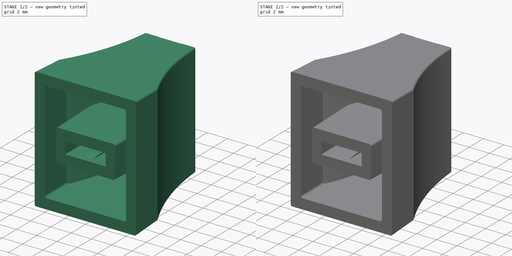
[diagram: build sequence overview — one tinted view per stage of 2, left to right]
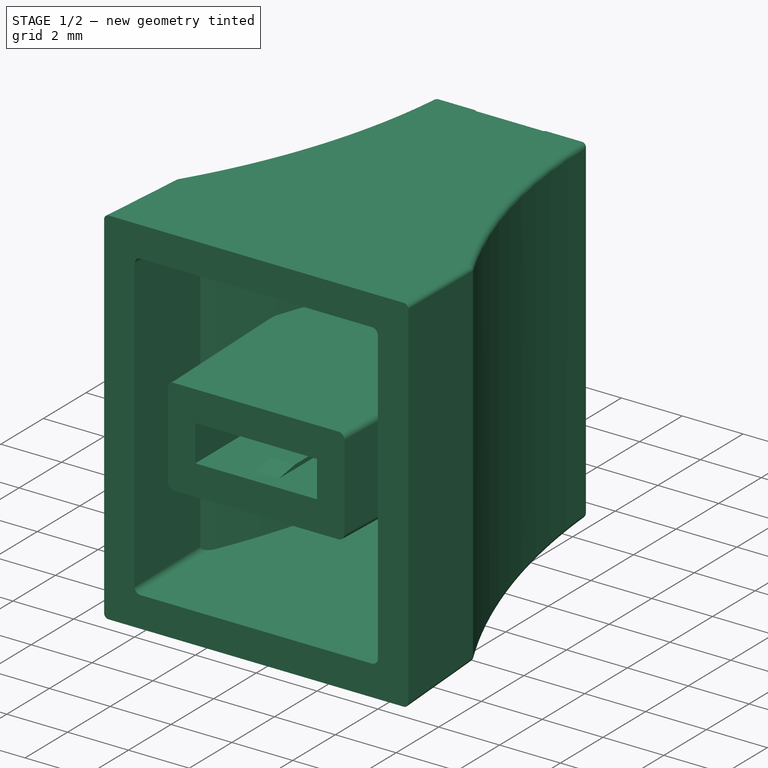
[diagram: stage 1 of 2 — iso view after this stage's code; geometry added in this stage tinted green]
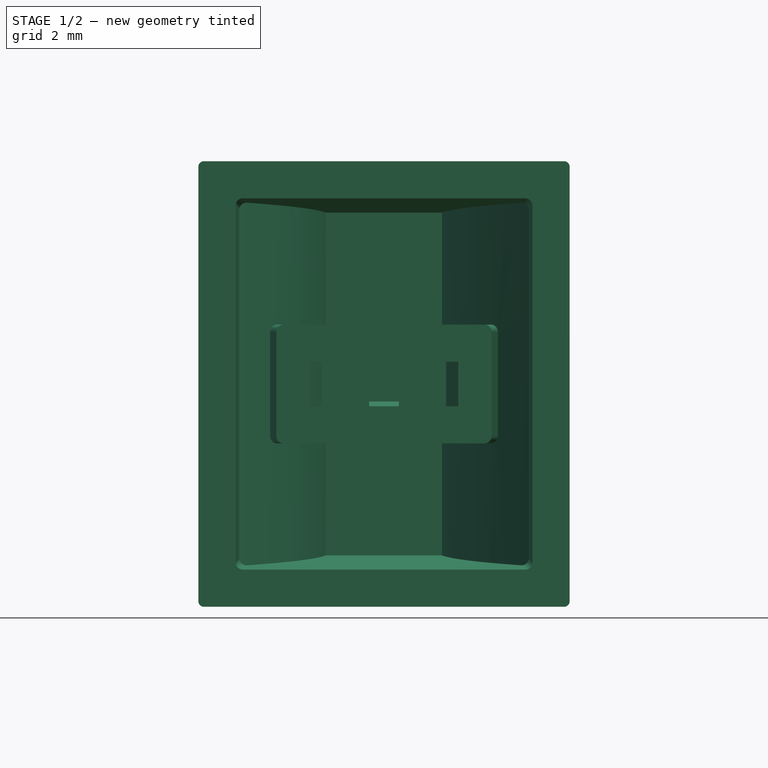
[diagram: stage 1 of 2 — front view after this stage's code; geometry added in this stage tinted green]
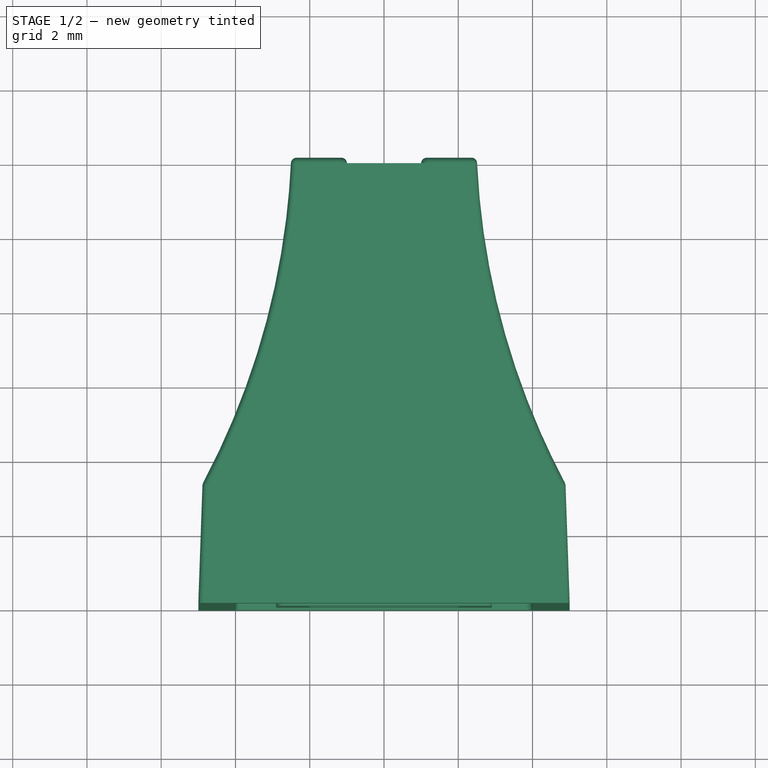
[diagram: stage 1 of 2 — top view after this stage's code; geometry added in this stage tinted green]
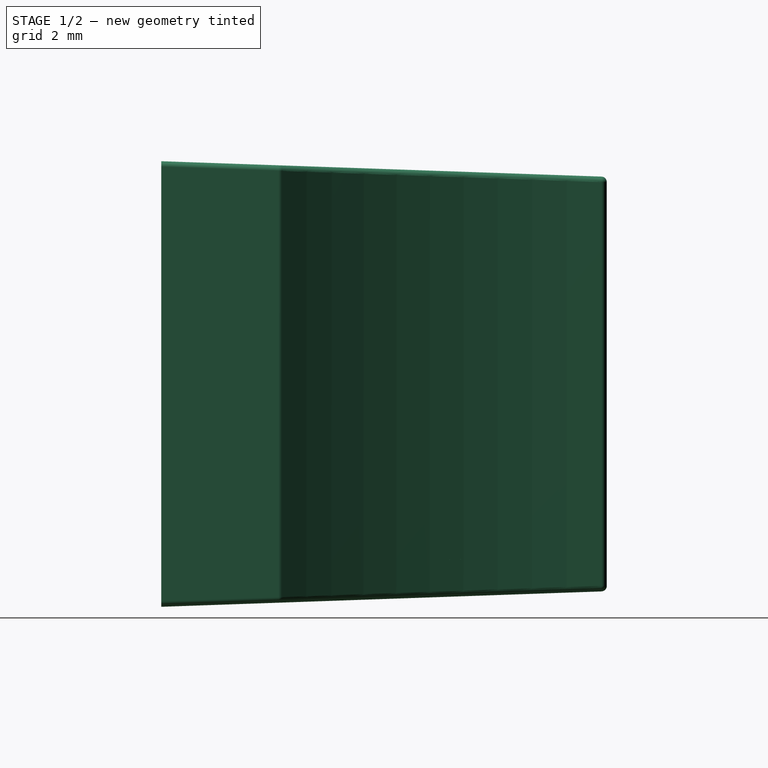
[diagram: stage 1 of 2 — right view after this stage's code; geometry added in this stage tinted green]
FCSTD DOCUMENT  (FreeCAD 1.0R39319 (Git))
Label: PLASTIC-CAP-FADER_printable
License: All rights reserved
LicenseURL: https://en.wikipedia.org/wiki/All_rights_reserved
objects: Part::Feature×1, PartDesign::Boolean×1, Sketcher::SketchObject×1, PartDesign::Pad×1, PartDesign::Body×1
note: 9 computed .brp shape members not serialized (recipe doc carries the construction recipe); baked Part::Feature solids carry a one-line shape summary decoded from their .brp

FEATURE [Part::Feature] Part__Feature  label="PLASTIC-CAP-FADER_BODY"
  shape: bbox 10.01 x 12.03 x 12.01 mm, 88 faces (baked)
FEATURE [PartDesign::Boolean] Boolean
  Group = -> [Part__Feature]
  Suppressed = false
  Type = 0
  UsePlacement = false
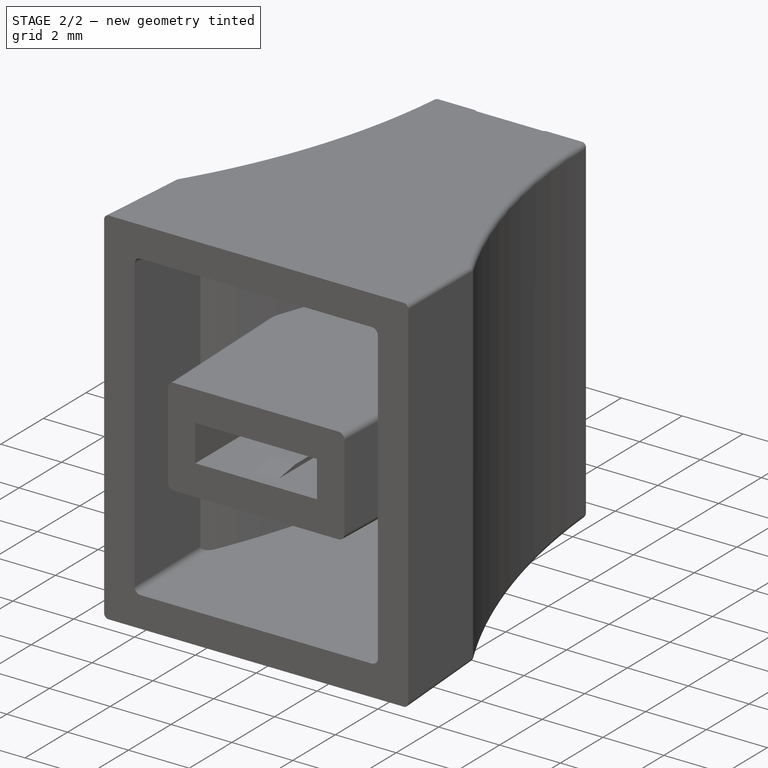
[diagram: stage 2 of 2 — iso view after this stage's code; geometry added in this stage tinted green]
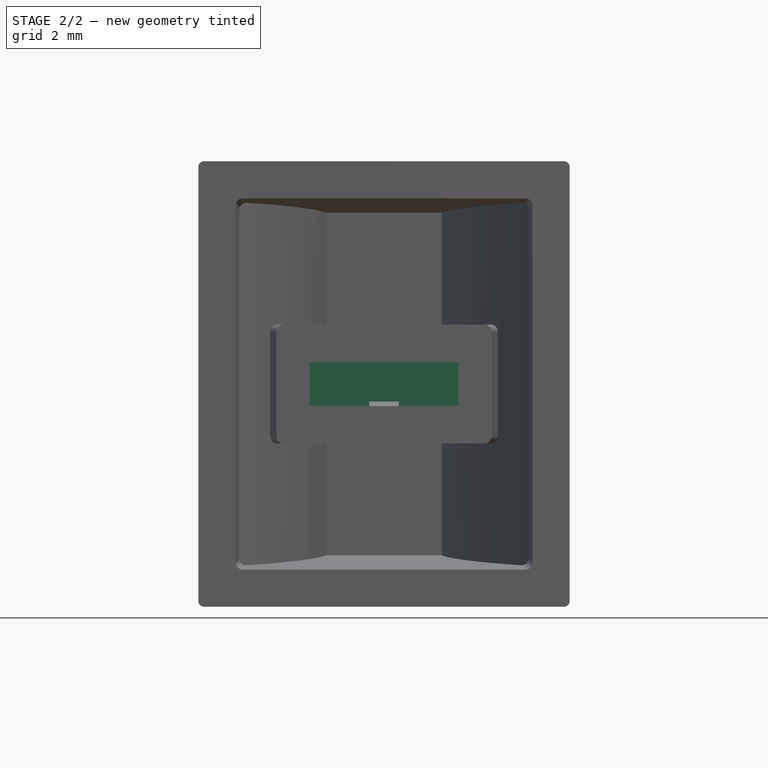
[diagram: stage 2 of 2 — front view after this stage's code; geometry added in this stage tinted green]
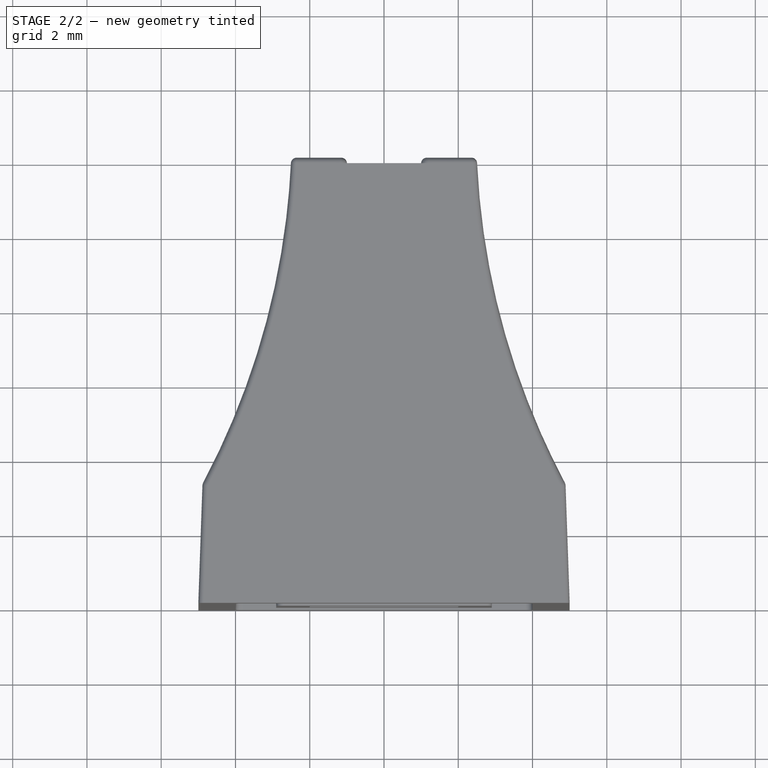
[diagram: stage 2 of 2 — top view after this stage's code; geometry added in this stage tinted green]
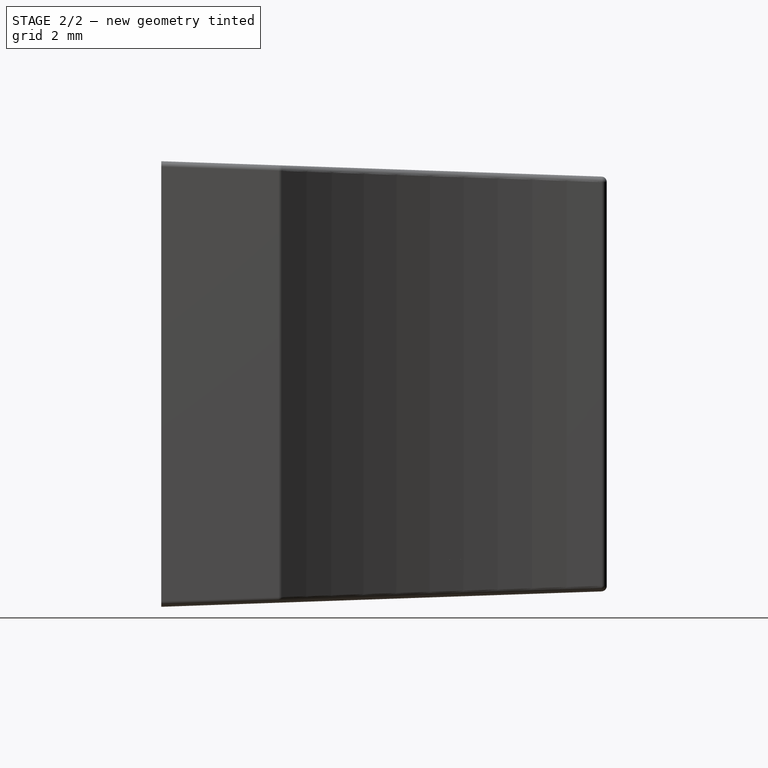
[diagram: stage 2 of 2 — right view after this stage's code; geometry added in this stage tinted green]
FEATURE [Sketcher::SketchObject] Sketch
  ArcFitTolerance = 1e-06
  AttachmentSupport = -> [XY_Plane]
  FullyConstrained = true
  MakeInternals = false
  MapMode = 5
  sketch-geometry (7):
    g0: LineSegment StartX=-2 StartY=10 StartZ=0 EndX=-2.5 EndY=7.5 EndZ=0
    g1: LineSegment StartX=-2.5 StartY=7.5 StartZ=0 EndX=-2.5 EndY=5.5 EndZ=0
    g2: LineSegment StartX=-2 StartY=10 StartZ=0 EndX=2 EndY=10 EndZ=0
    g3: LineSegment StartX=2 StartY=10 StartZ=0 EndX=2.5 EndY=7.5 EndZ=0
    g4: LineSegment StartX=2.5 StartY=7.5 StartZ=0 EndX=2.5 EndY=5.5 EndZ=0
    g5: LineSegment StartX=2.5 StartY=5.5 StartZ=0 EndX=-2.5 EndY=5.5 EndZ=0
    g6: GeomPoint X=0 Y=10 Z=0
  constraints (19):
    c: Coincident(g1,g0)
    c: Vertical(g1)
    c: Coincident(g2,g0)
    c: Horizontal(g2)
    c: Coincident(g3,g2)
    c: Coincident(g4,g3)
    c: Coincident(g5,g4)
    c: Coincident(g5,g1)
    c: Vertical(g4)
    c: Horizontal(g5)
    c: Distance(g2,g-1) = 10
    c: Distance(g5,g2) = 4.5
    c: DistanceX(g5,g5) = 5
    c: Equal(g0,g3)
    c: Equal(g4,g1)
    c: DistanceY(g1,g1) = 2
    c: Symmetric(g2,g2,g6)
    c: PointOnObject(g6,g-2)
    c: Distance(g2,g2) = 4
FEATURE [PartDesign::Pad] Pad
  BaseFeature = -> Boolean
  Direction = (0,0,1)
  Length = 1.2
  Length2 = 10
  Midplane = true
  Profile = -> Sketch
  ReferenceAxis = -> Sketch [N_Axis]
  Refine = true
  Suppressed = false
  Type = 0
FEATURE [PartDesign::Body] Body  label="PLASTIC-CAP-FADER"
  AllowCompound = false
  Group = -> [Boolean,Sketch,Pad]
  Origin = -> Origin
  Tip = -> Pad
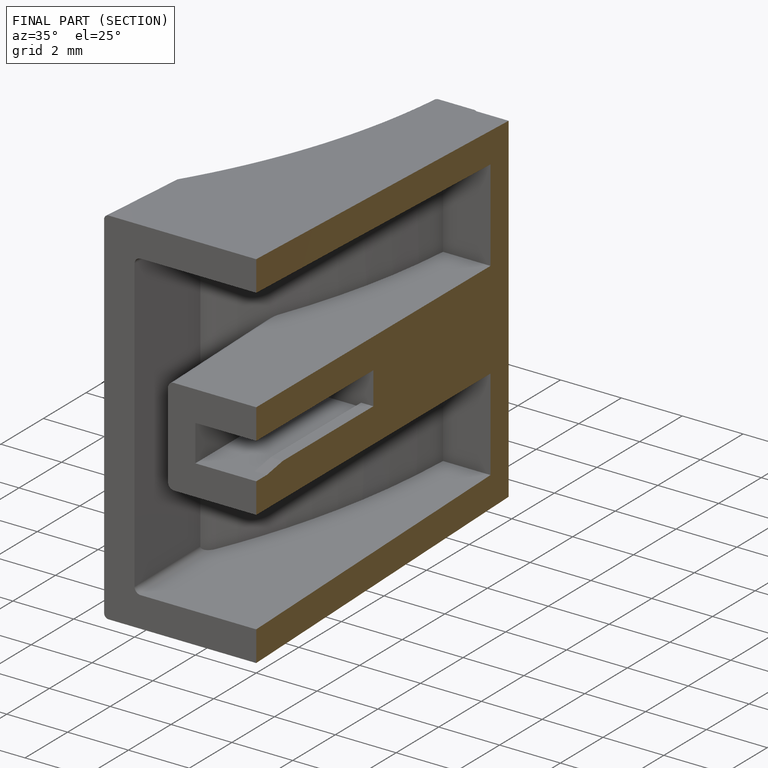
[diagram: finished part — half-section view (interior)]
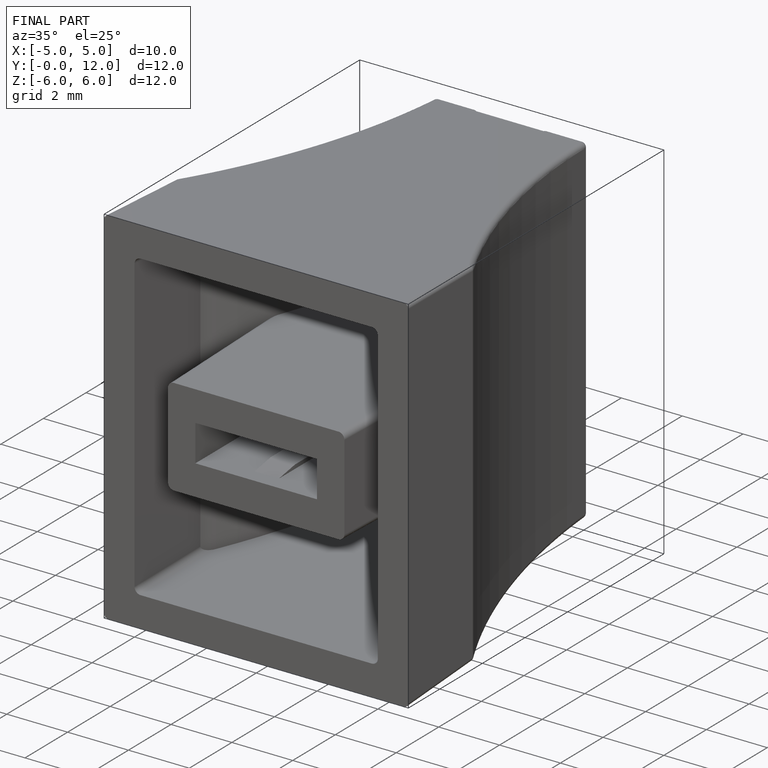
[diagram: finished part — iso view with bounding-box wireframe]
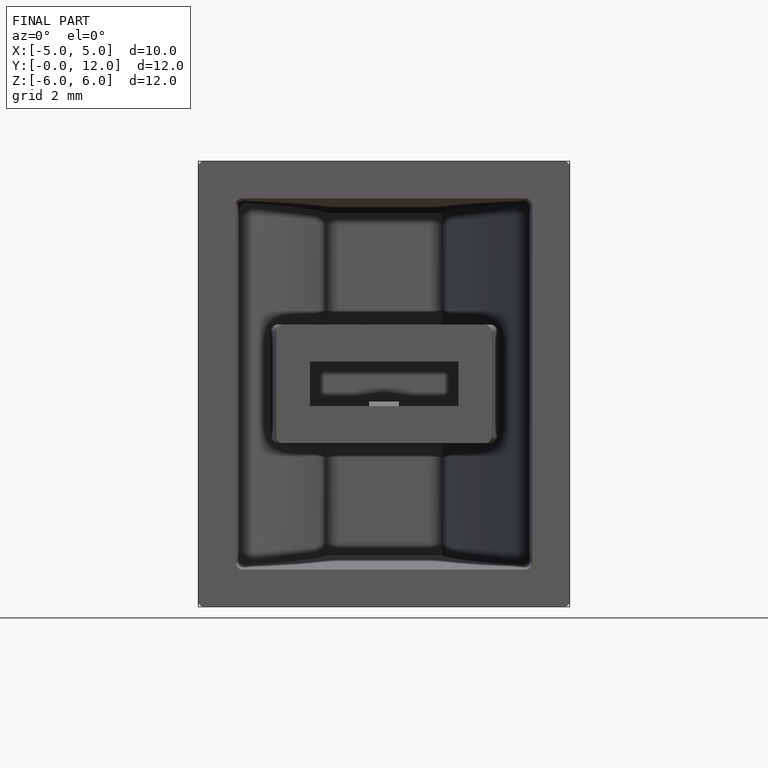
[diagram: finished part — front view with bounding-box wireframe]
